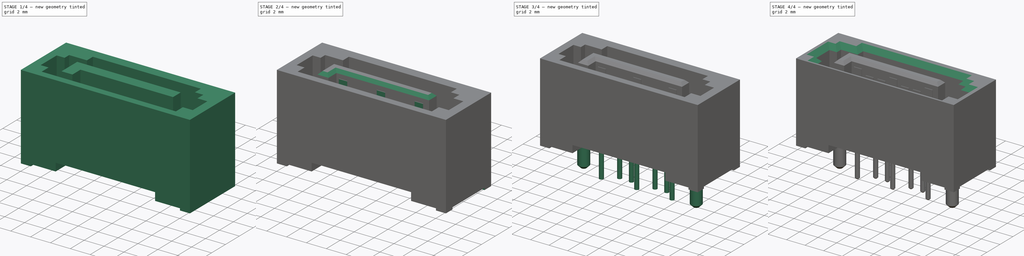
[diagram: build sequence overview — one tinted view per stage of 4, left to right]
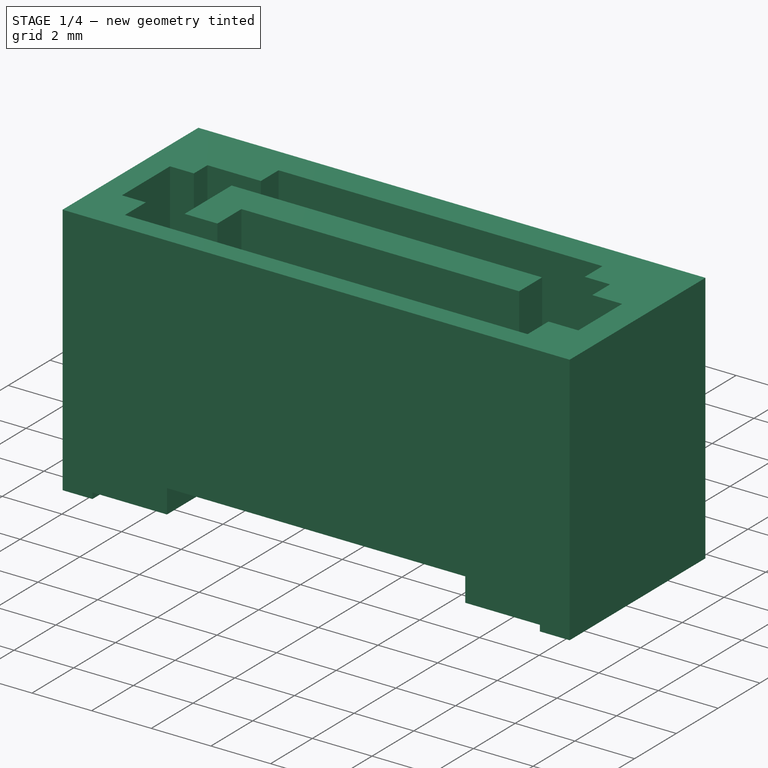
[diagram: stage 1 of 4 — iso view after this stage's code; geometry added in this stage tinted green]
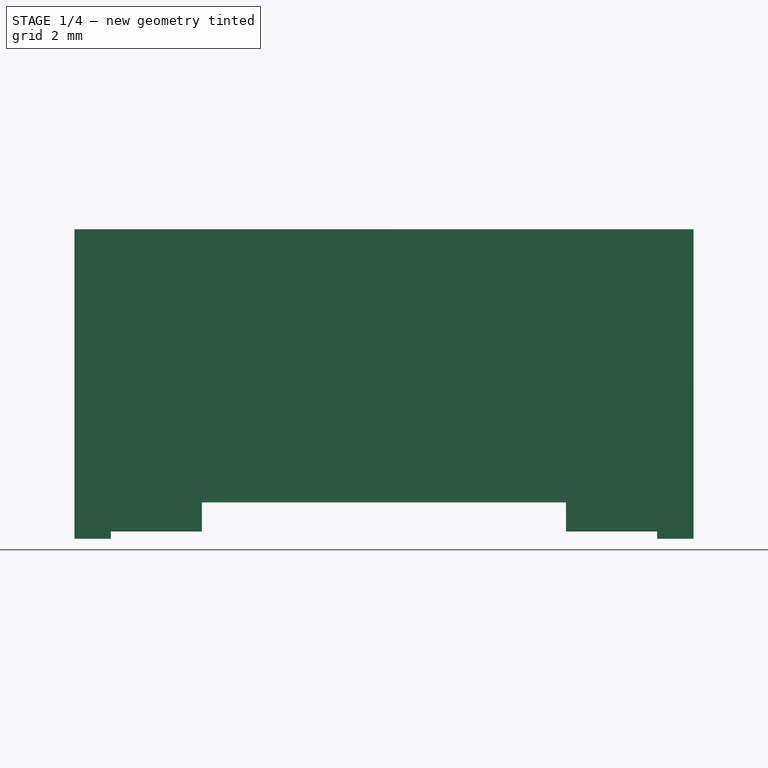
[diagram: stage 1 of 4 — front view after this stage's code; geometry added in this stage tinted green]
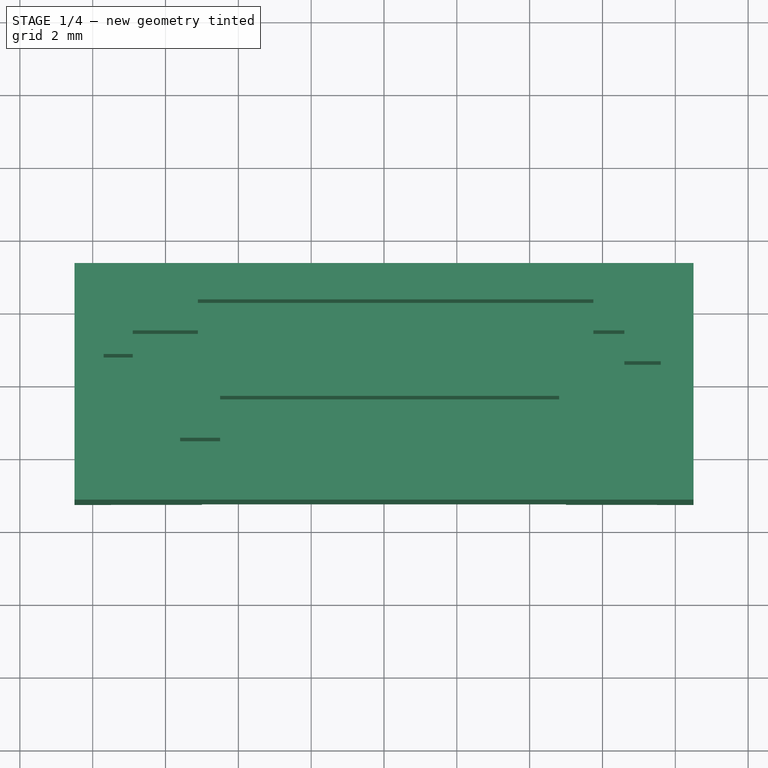
[diagram: stage 1 of 4 — top view after this stage's code; geometry added in this stage tinted green]
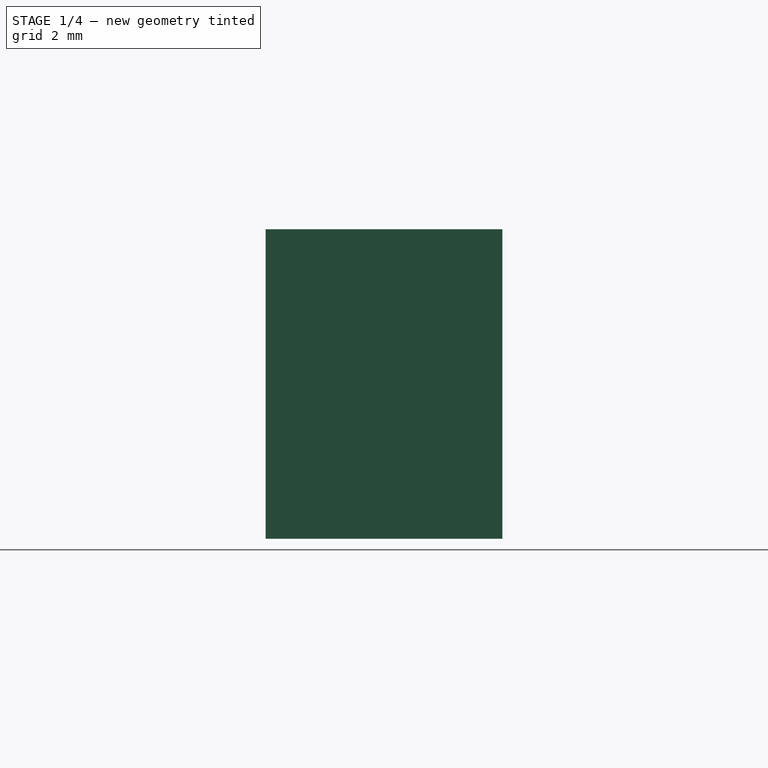
[diagram: stage 1 of 4 — right view after this stage's code; geometry added in this stage tinted green]
FCSTD DOCUMENT  (FreeCAD 0.14R3702 (Git))
Label: sata-data
License: CC-BY 3.0
LicenseURL: http://creativecommons.org/licenses/by/3.0/
objects: Sketcher::SketchObject×8, PartDesign::Pad×5, PartDesign::Chamfer×4, PartDesign::Pocket×3, Part::MultiFuse×2, App::DocumentObjectGroup×1
note: 30 computed .brp shape members not serialized (recipe doc carries the construction recipe); baked Part::Feature solids carry a one-line shape summary decoded from their .brp

FEATURE [Sketcher::SketchObject] Sketch
  sketch-geometry (7):
    g0: LineSegment StartX=-8.5 StartY=3.25 StartZ=0 EndX=8.5 EndY=3.25 EndZ=0
    g1: LineSegment StartX=8.5 StartY=3.25 StartZ=0 EndX=8.5 EndY=-3.25 EndZ=0
    g2: LineSegment StartX=8.5 StartY=-3.25 StartZ=0 EndX=-8.5 EndY=-3.25 EndZ=0
    g3: LineSegment StartX=-8.5 StartY=-3.25 StartZ=0 EndX=-8.5 EndY=3.25 EndZ=0
    g4: LineSegment [constr] StartX=-8.5 StartY=3.25 StartZ=0 EndX=8.5 EndY=-3.25 EndZ=0
    g5: LineSegment [constr] StartX=-8.5 StartY=-3.25 StartZ=0 EndX=8.5 EndY=3.25 EndZ=0
    g6: GeomPoint [constr] X=0 Y=0 Z=0
  constraints (17):
    c: Coincident(g0,g1)
    c: Coincident(g1,g2)
    c: Coincident(g2,g3)
    c: Coincident(g3,g0)
    c: Horizontal(g0)
    c: Horizontal(g2)
    c: Vertical(g1)
    c: Vertical(g3)
    c: DistanceX(g0,g0) = 17
    c: DistanceY(g0,g1) = -6.5
    c: Coincident(g4,g0)
    c: Coincident(g4,g1)
    c: Coincident(g5,g2)
    c: Coincident(g5,g0)
    c: PointOnObject(g6,g4)
    c: PointOnObject(g6,g5)
    c: Coincident(g6,g-1)
FEATURE [PartDesign::Pad] Pad  label="Body"
  Length = 8.5
  Length2 = 100
  Sketch = -> Sketch
  Type = 0
FEATURE [Sketcher::SketchObject] Sketch001
  Placement = pos=(0,-3.25,0) rot=(1,0,0;1.5708rad)
  Support = -> Pad [Face3]
  sketch-geometry (8):
    g0: LineSegment StartX=-7.5 StartY=0 StartZ=0 EndX=-7.5 EndY=0.2 EndZ=0
    g1: LineSegment StartX=-7.5 StartY=0.2 StartZ=0 EndX=-5 EndY=0.2 EndZ=0
    g2: LineSegment StartX=-5 StartY=0.2 StartZ=0 EndX=-5 EndY=1 EndZ=0
    g3: LineSegment StartX=-5 StartY=1 StartZ=0 EndX=5 EndY=1 EndZ=0
    g4: LineSegment StartX=5 StartY=1 StartZ=0 EndX=5 EndY=0.2 EndZ=0
    g5: LineSegment StartX=5 StartY=0.2 StartZ=0 EndX=7.5 EndY=0.2 EndZ=0
    g6: LineSegment StartX=7.5 StartY=0.2 StartZ=0 EndX=7.5 EndY=0 EndZ=0
    g7: LineSegment StartX=7.5 StartY=0 StartZ=0 EndX=-7.5 EndY=0 EndZ=0
  constraints (22):
    c: Vertical(g0)
    c: Coincident(g0,g1)
    c: Coincident(g1,g2)
    c: Coincident(g2,g3)
    c: Coincident(g3,g4)
    c: Vertical(g4)
    c: Coincident(g4,g5)
    c: Coincident(g5,g6)
    c: Coincident(g6,g7)
    c: Coincident(g7,g0)
    c: Equal(g6,g0)
    c: Equal(g1,g5)
    c: Equal(g2,g4)
    c: Tangent(g1,g5)
    c: DistanceY(g3,g6) = -1
    c: DistanceY(g6,g5) = 0.2
    c: DistanceX(g0,g6) = 15
    c: Vertical(g6)
    c: DistanceX(g2,g3) = 10
    c: Symmetric(g2,g3,g-2)
    c: Symmetric(g0,g6,g-2)
    c: Tangent(g7,g-1)
FEATURE [PartDesign::Pocket] Pocket  label="foot"
  Length = 5
  Sketch = -> Sketch001
  Type = 1
FEATURE [Sketcher::SketchObject] Sketch002
  ExternalGeometry = -> [Pocket]
  Placement = pos=(0,0,8.5) rot=(0,0,1;0rad)
  Support = -> Pocket [Face12]
  sketch-geometry (16):
    g0: LineSegment StartX=-5.11 StartY=2.25 StartZ=0 EndX=5.75 EndY=2.25 EndZ=0
    g1: LineSegment StartX=5.75 StartY=2.25 StartZ=0 EndX=5.75 EndY=1.4 EndZ=0
    g2: LineSegment StartX=5.75 StartY=1.4 StartZ=0 EndX=6.6 EndY=1.4 EndZ=0
    g3: LineSegment StartX=6.6 StartY=1.4 StartZ=0 EndX=6.6 EndY=0.55 EndZ=0
    g4: LineSegment StartX=6.6 StartY=0.55 StartZ=0 EndX=7.6 EndY=0.55 EndZ=0
    g5: LineSegment StartX=7.6 StartY=0.55 StartZ=0 EndX=7.6 EndY=-1.55 EndZ=0
    g6: LineSegment StartX=7.6 StartY=-1.55 StartZ=0 EndX=6.6 EndY=-1.55 EndZ=0
    g7: LineSegment StartX=6.6 StartY=-1.55 StartZ=0 EndX=6.6 EndY=-2.55 EndZ=0
    g8: LineSegment StartX=6.6 StartY=-2.55 StartZ=0 EndX=-6.9 EndY=-2.55 EndZ=0
    g9: LineSegment StartX=-6.9 StartY=-2.55 StartZ=0 EndX=-6.9 EndY=-1.55 EndZ=0
    g10: LineSegment StartX=-6.9 StartY=-1.55 StartZ=0 EndX=-7.7 EndY=-1.55 EndZ=0
    g11: LineSegment StartX=-7.7 StartY=-1.55 StartZ=0 EndX=-7.7 EndY=0.75 EndZ=0
    g12: LineSegment StartX=-7.7 StartY=0.75 StartZ=0 EndX=-6.9 EndY=0.75 EndZ=0
    g13: LineSegment StartX=-6.9 StartY=0.75 StartZ=0 EndX=-6.9 EndY=1.4 EndZ=0
    g14: LineSegment StartX=-6.9 StartY=1.4 StartZ=0 EndX=-5.11 EndY=1.4 EndZ=0
    g15: LineSegment StartX=-5.11 StartY=1.4 StartZ=0 EndX=-5.11 EndY=2.25 EndZ=0
  constraints (48):
    c: Horizontal(g0)
    c: DistanceX(g0,g0) = 10.86
    c: Coincident(g0,g1)
    c: Vertical(g1)
    c: Coincident(g1,g2)
    c: Coincident(g2,g3)
    c: Coincident(g3,g4)
    c: Coincident(g4,g5)
    c: Vertical(g5)
    c: Horizontal(g2)
    c: DistanceX(g1,g2) = 0.85
    c: Vertical(g3)
    c: Horizontal(g4)
    c: DistanceX(g3,g4) = 1
    c: Coincident(g5,g6)
    c: Coincident(g6,g7)
    c: Vertical(g7)
    c: DistanceY(g7,g-3) = -0.7
    c: DistanceY(g0,g-4) = 1
    c: DistanceX(g4,g-4) = 0.9
    c: DistanceY(g6,g-3) = -1.7
    c: Horizontal(g6)
    c: Tangent(g7,g3)
    c: Coincident(g8,g7)
    c: Horizontal(g8)
    c: DistanceX(g8,g7) = 13.5
    c: Equal(g3,g1)
    c: DistanceY(g5,g4) = 2.1
    c: Coincident(g8,g9)
    c: Coincident(g9,g10)
    c: Coincident(g10,g11)
    c: Vertical(g11)
    c: Coincident(g11,g12)
    c: Coincident(g12,g13)
    c: Coincident(g13,g14)
    c: Horizontal(g14)
    c: Coincident(g14,g15)
    c: Coincident(g15,g0)
    c: Vertical(g15)
    c: Vertical(g9)
    c: Horizontal(g10)
    c: Horizontal(g12)
    c: DistanceX(g11,g4) = 15.3
    c: DistanceY(g8,g9) = 1
    c: Equal(g1,g15)
    c: DistanceX(g12,g2) = 13.5
    c: Vertical(g13)
    c: DistanceY(g11,g10) = -2.3
FEATURE [PartDesign::Pocket] Pocket001  label="inside"
  Length = 5.5
  Sketch = -> Sketch002
  Type = 0
FEATURE [Sketcher::SketchObject] Sketch003
  ExternalGeometry = -> [Pocket001]
  Placement = pos=(0,0,8.5) rot=(0,0,1;0rad)
  Support = -> Pocket001 [Face12]
  sketch-geometry (6):
    g0: LineSegment StartX=-5.6 StartY=0.7 StartZ=0 EndX=4.81 EndY=0.7 EndZ=0
    g1: LineSegment StartX=4.81 StartY=0.7 StartZ=0 EndX=4.81 EndY=-0.4 EndZ=0
    g2: LineSegment StartX=4.81 StartY=-0.4 StartZ=0 EndX=-4.5 EndY=-0.4 EndZ=0
    g3: LineSegment StartX=-4.5 StartY=-0.4 StartZ=0 EndX=-4.5 EndY=-1.55 EndZ=0
    g4: LineSegment StartX=-4.5 StartY=-1.55 StartZ=0 EndX=-5.6 EndY=-1.55 EndZ=0
    g5: LineSegment StartX=-5.6 StartY=-1.55 StartZ=0 EndX=-5.6 EndY=0.7 EndZ=0
  constraints (18):
    c: Horizontal(g0)
    c: Coincident(g0,g1)
    c: Vertical(g1)
    c: Coincident(g1,g2)
    c: Horizontal(g2)
    c: Coincident(g2,g3)
    c: Coincident(g3,g4)
    c: Horizontal(g4)
    c: Coincident(g4,g5)
    c: Coincident(g5,g0)
    c: Vertical(g5)
    c: Vertical(g3)
    c: DistanceX(g0,g0) = 10.41
    c: DistanceY(g0,g-3) = 1.55
    c: DistanceY(g1,g0) = 1.1
    c: DistanceX(g1,g-4) = 1.79
    c: DistanceY(g4,g0) = 2.25
    c: Equal(g4,g1)
FEATURE [PartDesign::Pad] Pad001  label="connector"
  Length = 8.5
  Length2 = 100
  Reversed = true
  Sketch = -> Sketch003
  Type = 2
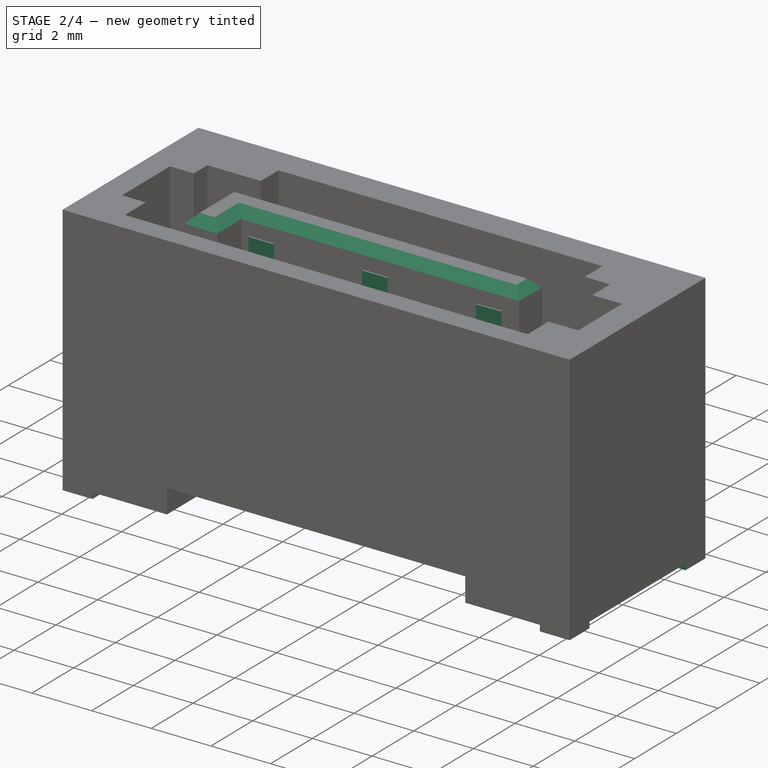
[diagram: stage 2 of 4 — iso view after this stage's code; geometry added in this stage tinted green]
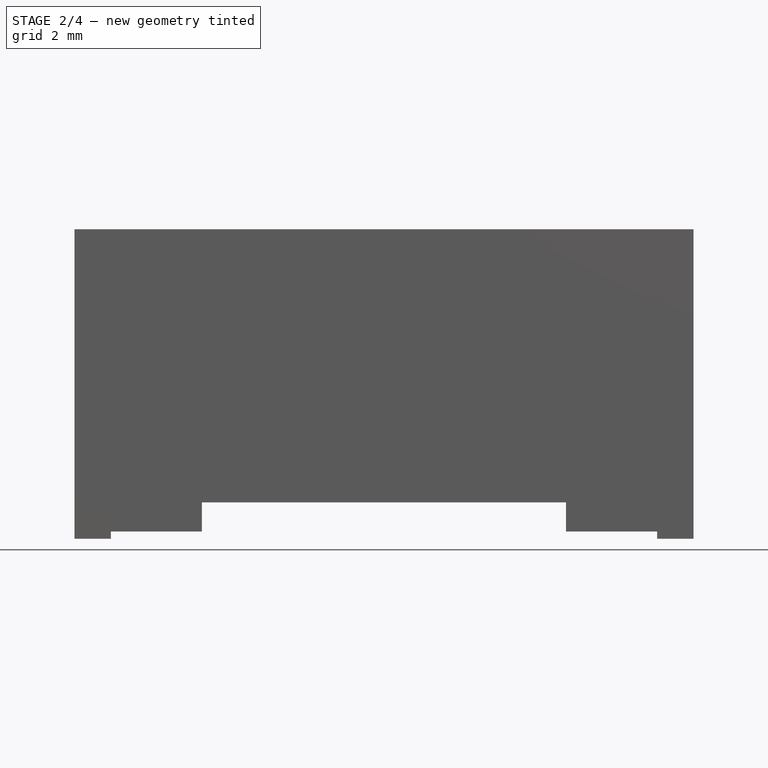
[diagram: stage 2 of 4 — front view after this stage's code; geometry added in this stage tinted green]
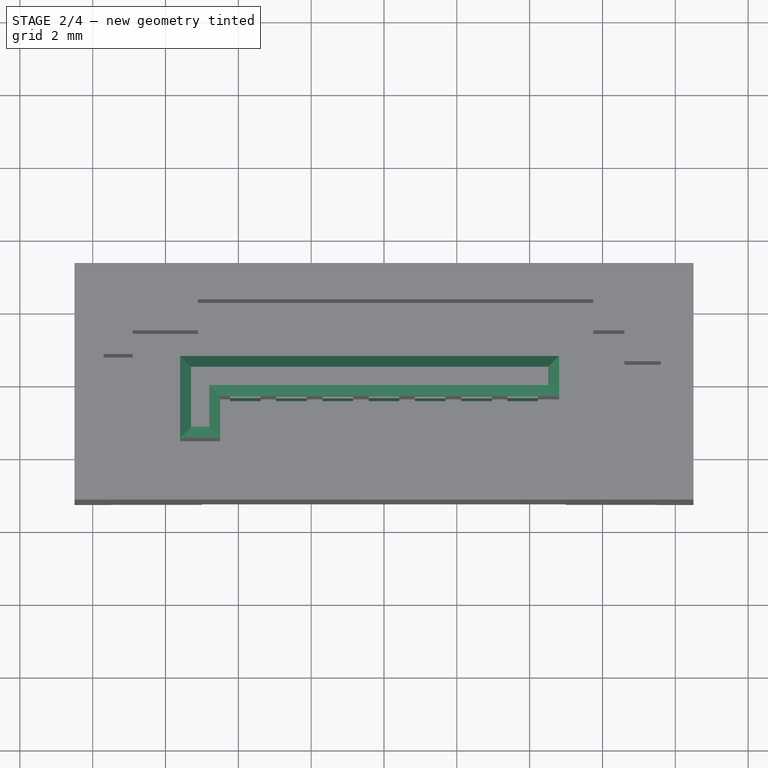
[diagram: stage 2 of 4 — top view after this stage's code; geometry added in this stage tinted green]
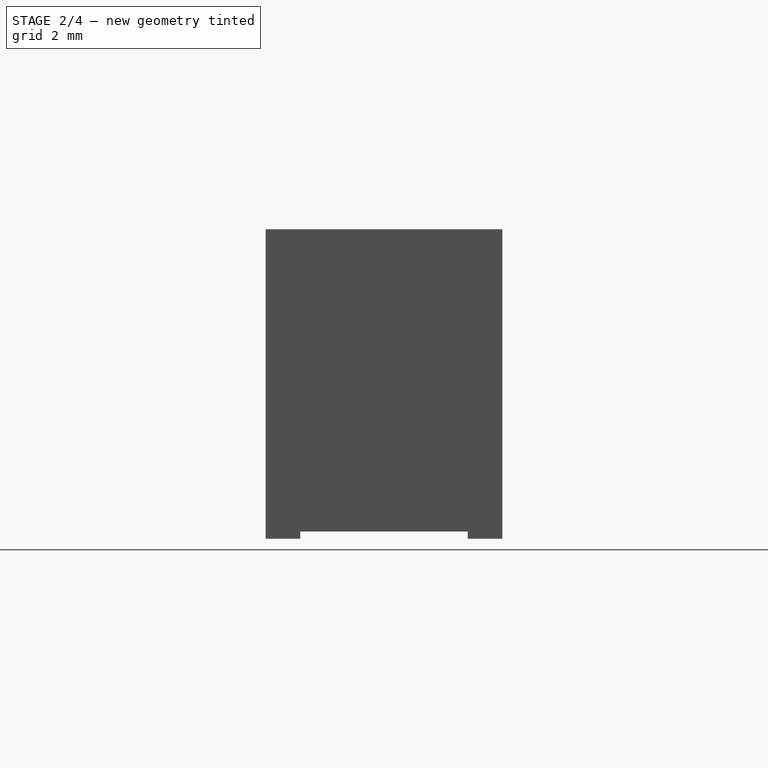
[diagram: stage 2 of 4 — right view after this stage's code; geometry added in this stage tinted green]
FEATURE [Sketcher::SketchObject] Sketch004
  sketch-geometry (2):
    g0: Circle CenterX=6.415 CenterY=-0.5 CenterZ=0 NormalX=0 NormalY=0 NormalZ=1 Radius=0.575
    g1: Circle CenterX=-6.415 CenterY=0.5 CenterZ=0 NormalX=0 NormalY=0 NormalZ=1 Radius=0.575
  constraints (6):
    c: Equal(g1,g0)
    c: Radius(g0) = 0.575
    c: DistanceX(g1,g0) = 12.83
    c: DistanceY(g1,g0) = -1
    c: DistanceX(g-1,g0) = 6.415
    c: DistanceY(g-1,g0) = -0.5
FEATURE [Sketcher::SketchObject] Sketch005
  ExternalGeometry = -> [Pad001]
  Placement = pos=(-8.5,0,0) rot=(0.57735,-0.57735,-0.57735;2.0944rad)
  Support = -> Pad001 [Face13]
  sketch-geometry (4):
    g0: LineSegment StartX=-2.3 StartY=0 StartZ=0 EndX=2.3 EndY=0 EndZ=0
    g1: LineSegment StartX=2.3 StartY=0 StartZ=0 EndX=2.3 EndY=0.2 EndZ=0
    g2: LineSegment StartX=2.3 StartY=0.2 StartZ=0 EndX=-2.3 EndY=0.2 EndZ=0
    g3: LineSegment StartX=-2.3 StartY=0.2 StartZ=0 EndX=-2.3 EndY=0 EndZ=0
  constraints (12):
    c: Coincident(g0,g1)
    c: Coincident(g1,g2)
    c: Coincident(g2,g3)
    c: Coincident(g3,g0)
    c: Horizontal(g0)
    c: Horizontal(g2)
    c: Vertical(g1)
    c: Vertical(g3)
    c: DistanceX(g2,g-3) = -0.95
    c: DistanceX(g1,g-4) = 0.95
    c: Tangent(g0,g-1)
    c: DistanceY(g2,g0) = -0.2
FEATURE [PartDesign::Pocket] Pocket002  label="pads"
  Length = 5
  Sketch = -> Sketch005
  Type = 1
FEATURE [Sketcher::SketchObject] Sketch007
  Placement = pos=(0,-0.4,0) rot=(1,0,0;1.5708rad)
  Support = -> Pocket002 [Face51]
  sketch-geometry (28):
    g0: LineSegment StartX=-4.23 StartY=3 StartZ=0 EndX=-3.39 EndY=3 EndZ=0
    g1: LineSegment StartX=-3.39 StartY=3 StartZ=0 EndX=-3.39 EndY=7.75 EndZ=0
    g2: LineSegment StartX=-3.39 StartY=7.75 StartZ=0 EndX=-4.23 EndY=7.75 EndZ=0
    g3: LineSegment StartX=-4.23 StartY=7.75 StartZ=0 EndX=-4.23 EndY=3 EndZ=0
    g4: LineSegment StartX=-0.42 StartY=3 StartZ=0 EndX=0.42 EndY=3 EndZ=0
    g5: LineSegment StartX=0.42 StartY=3 StartZ=0 EndX=0.42 EndY=7.75 EndZ=0
    g6: LineSegment StartX=0.42 StartY=7.75 StartZ=0 EndX=-0.42 EndY=7.75 EndZ=0
    g7: LineSegment StartX=-0.42 StartY=7.75 StartZ=0 EndX=-0.42 EndY=3 EndZ=0
    g8: LineSegment StartX=3.39 StartY=3 StartZ=0 EndX=4.23 EndY=3 EndZ=0
    g9: LineSegment StartX=4.23 StartY=3 StartZ=0 EndX=4.23 EndY=7.75 EndZ=0
    g10: LineSegment StartX=4.23 StartY=7.75 StartZ=0 EndX=3.39 EndY=7.75 EndZ=0
    g11: LineSegment StartX=3.39 StartY=7.75 StartZ=0 EndX=3.39 EndY=3 EndZ=0
    g12: LineSegment StartX=-2.96 StartY=3 StartZ=0 EndX=-2.12 EndY=3 EndZ=0
    g13: LineSegment StartX=-2.12 StartY=3 StartZ=0 EndX=-2.12 EndY=7.25 EndZ=0
    g14: LineSegment StartX=-2.12 StartY=7.25 StartZ=0 EndX=-2.96 EndY=7.25 EndZ=0
    g15: LineSegment StartX=-2.96 StartY=7.25 StartZ=0 EndX=-2.96 EndY=3 EndZ=0
    g16: LineSegment StartX=-1.69 StartY=3 StartZ=0 EndX=-0.85 EndY=3 EndZ=0
    g17: LineSegment StartX=-0.85 StartY=3 StartZ=0 EndX=-0.85 EndY=7.25 EndZ=0
    g18: LineSegment StartX=-0.85 StartY=7.25 StartZ=0 EndX=-1.69 EndY=7.25 EndZ=0
    g19: LineSegment StartX=-1.69 StartY=7.25 StartZ=0 EndX=-1.69 EndY=3 EndZ=0
    g20: LineSegment StartX=0.85 StartY=3 StartZ=0 EndX=1.69 EndY=3 EndZ=0
    g21: LineSegment StartX=1.69 StartY=3 StartZ=0 EndX=1.69 EndY=7.25 EndZ=0
    g22: LineSegment StartX=1.69 StartY=7.25 StartZ=0 EndX=0.85 EndY=7.25 EndZ=0
    g23: LineSegment StartX=0.85 StartY=7.25 StartZ=0 EndX=0.85 EndY=3 EndZ=0
    g24: LineSegment StartX=2.12 StartY=3 StartZ=0 EndX=2.96 EndY=3 EndZ=0
    g25: LineSegment StartX=2.96 StartY=3 StartZ=0 EndX=2.96 EndY=7.25 EndZ=0
    g26: LineSegment StartX=2.96 StartY=7.25 StartZ=0 EndX=2.12 EndY=7.25 EndZ=0
    g27: LineSegment StartX=2.12 StartY=7.25 StartZ=0 EndX=2.12 EndY=3 EndZ=0
  constraints (83):
    c: Coincident(g0,g1)
    c: Coincident(g1,g2)
    c: Coincident(g2,g3)
    c: Coincident(g3,g0)
    c: Horizontal(g0)
    c: Horizontal(g2)
    c: Vertical(g1)
    c: Vertical(g3)
    c: Coincident(g4,g5)
    c: Coincident(g5,g6)
    c: Coincident(g6,g7)
    c: Coincident(g7,g4)
    c: Horizontal(g4)
    c: Horizontal(g6)
    c: Vertical(g5)
    c: Vertical(g7)
    c: Coincident(g8,g9)
    c: Coincident(g9,g10)
    c: Coincident(g10,g11)
    c: Coincident(g11,g8)
    c: Horizontal(g10)
    c: Vertical(g9)
    c: Vertical(g11)
    c: Coincident(g12,g13)
    c: Coincident(g13,g14)
    c: Coincident(g14,g15)
    c: Coincident(g15,g12)
    c: Horizontal(g12)
    c: Horizontal(g14)
    c: Vertical(g13)
    c: Vertical(g15)
    c: Coincident(g16,g17)
    c: Coincident(g17,g18)
    c: Coincident(g18,g19)
    c: Coincident(g19,g16)
    c: Horizontal(g16)
    c: Horizontal(g18)
    c: Vertical(g17)
    c: Vertical(g19)
    c: Coincident(g20,g21)
    c: Coincident(g21,g22)
    c: Coincident(g22,g23)
    c: Coincident(g23,g20)
    c: Horizontal(g20)
    c: Horizontal(g22)
    c: Vertical(g21)
    c: Vertical(g23)
    c: Coincident(g24,g25)
    c: Coincident(g25,g26)
    c: Coincident(g26,g27)
    c: Coincident(g27,g24)
    c: Horizontal(g24)
    c: Horizontal(g26)
    c: Vertical(g25)
    c: Vertical(g27)
    c: Equal(g2,g14)
    c: Equal(g14,g18)
    c: Equal(g18,g6)
    c: Equal(g6,g22)
    c: Equal(g22,g26)
    c: Equal(g26,g10)
    c: DistanceX(g2,g1) = 0.84
    c: Equal(g1,g5)
    c: Equal(g5,g9)
    c: Equal(g13,g17)
    c: Equal(g17,g21)
    c: Equal(g21,g25)
    c: DistanceX(g13,g1) = -1.27
    c: DistanceX(g13,g17) = 1.27
    c: DistanceX(g17,g5) = 1.27
    c: DistanceX(g4,g20) = 1.27
    c: DistanceX(g20,g24) = 1.27
    c: DistanceX(g24,g8) = 1.27
    c: DistanceY(g0,g2) = 4.75
    c: DistanceY(g12,g14) = 4.25
    c: Tangent(g24,g8)
    c: Tangent(g20,g8)
    c: Tangent(g4,g8)
    c: Tangent(g16,g8)
    c: Tangent(g12,g8)
    c: Tangent(g0,g8)
    c: DistanceY(g-1,g0) = 3
    c: DistanceX(g-1,g5) = 0.42
FEATURE [PartDesign::Pad] Pad004  label="contacts"
  Length = 0.05
  Length2 = 100
  Sketch = -> Sketch007
  Type = 0
FEATURE [PartDesign::Chamfer] Chamfer
  Base = -> Pad004 [Edge153,Edge156,Edge158,Edge160,Edge162,Edge220]
  Size = 0.3
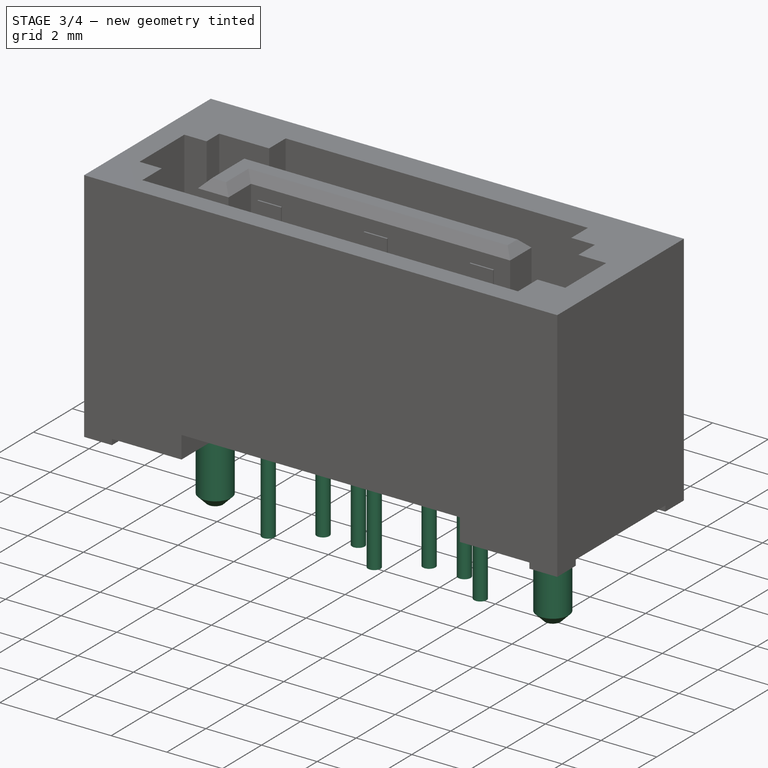
[diagram: stage 3 of 4 — iso view after this stage's code; geometry added in this stage tinted green]
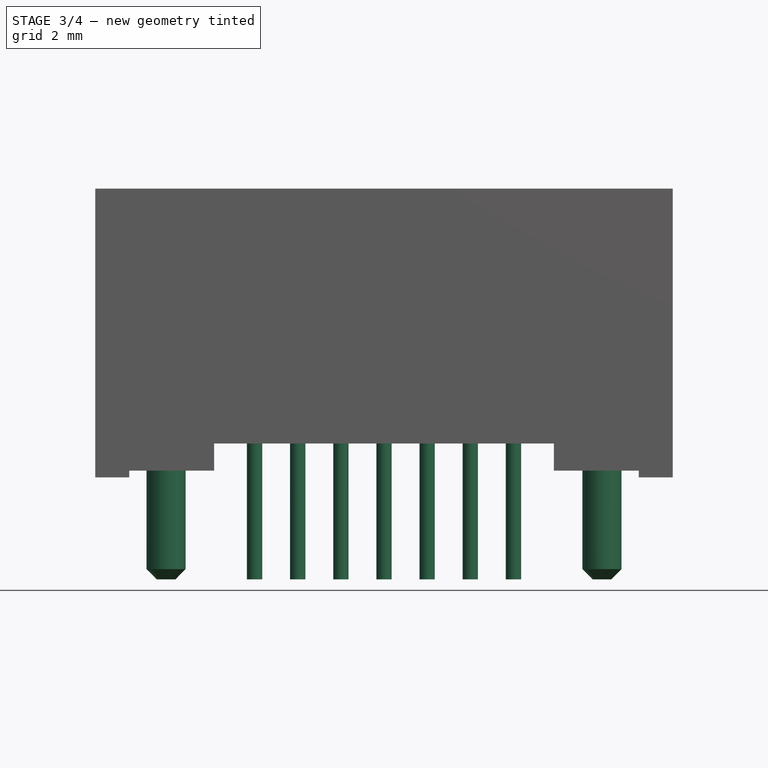
[diagram: stage 3 of 4 — front view after this stage's code; geometry added in this stage tinted green]
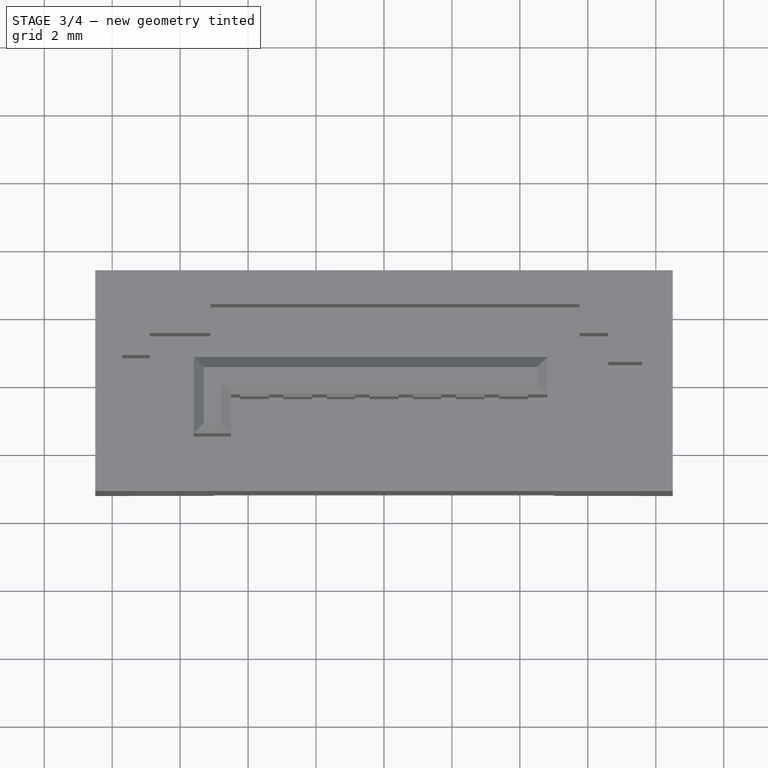
[diagram: stage 3 of 4 — top view after this stage's code; geometry added in this stage tinted green]
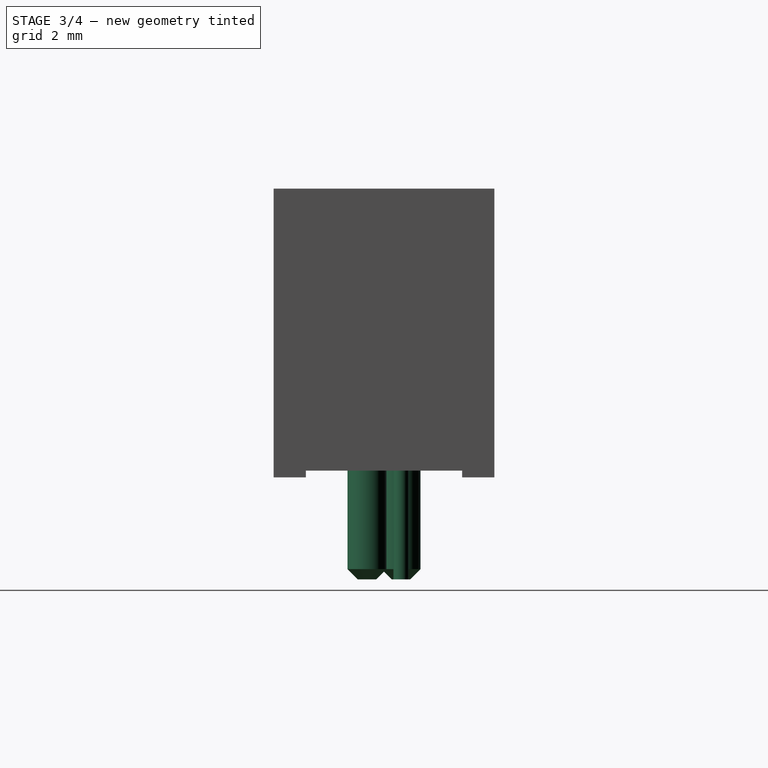
[diagram: stage 3 of 4 — right view after this stage's code; geometry added in this stage tinted green]
FEATURE [PartDesign::Pad] Pad002  label="pin-x2"
  Length = 0.5
  Length2 = 3
  Reversed = true
  Sketch = -> Sketch004
  Type = 4
FEATURE [Sketcher::SketchObject] Sketch006
  Placement = pos=(0,0,0) rot=(1,0,0;3.14159rad)
  sketch-geometry (9):
    g0: Circle CenterX=-2.54 CenterY=-0.5 CenterZ=0 NormalX=0 NormalY=0 NormalZ=1 Radius=0.225
    g1: Circle CenterX=-1.27 CenterY=-0.5 CenterZ=0 NormalX=0 NormalY=0 NormalZ=1 Radius=0.225
    g2: Circle CenterX=0 CenterY=0.5 CenterZ=0 NormalX=0 NormalY=0 NormalZ=1 Radius=0.225
    g3: Circle CenterX=1.27 CenterY=-0.5 CenterZ=0 NormalX=0 NormalY=0 NormalZ=1 Radius=0.225
    g4: Circle CenterX=2.54 CenterY=-0.5 CenterZ=0 NormalX=0 NormalY=0 NormalZ=1 Radius=0.225
    g5: Circle CenterX=3.81 CenterY=0.5 CenterZ=0 NormalX=0 NormalY=0 NormalZ=1 Radius=0.225
    g6: Circle CenterX=-3.81 CenterY=0.5 CenterZ=0 NormalX=0 NormalY=0 NormalZ=1 Radius=0.225
    g7: LineSegment [constr] StartX=-3.81 StartY=0.5 StartZ=0 EndX=3.81 EndY=0.5 EndZ=0
    g8: LineSegment [constr] StartX=-2.54 StartY=-0.5 StartZ=0 EndX=2.54 EndY=-0.5 EndZ=0
  constraints (25):
    c: Equal(g6,g0)
    c: Equal(g6,g1)
    c: Equal(g6,g2)
    c: Equal(g3,g6)
    c: Equal(g6,g4)
    c: Equal(g6,g5)
    c: Radius(g6) = 0.225
    c: DistanceX(g6,g0) = 1.27
    c: DistanceX(g0,g1) = 1.27
    c: DistanceX(g1,g2) = 1.27
    c: DistanceX(g2,g3) = 1.27
    c: DistanceX(g3,g4) = 1.27
    c: DistanceX(g4,g5) = 1.27
    c: Horizontal(g7)
    c: PointOnObject(g2,g7)
    c: Coincident(g6,g7)
    c: Coincident(g5,g7)
    c: Coincident(g0,g8)
    c: Horizontal(g8)
    c: Coincident(g4,g8)
    c: PointOnObject(g1,g8)
    c: PointOnObject(g3,g8)
    c: DistanceY(g5,g4) = -1
    c: PointOnObject(g2,g-2)
    c: DistanceY(g-1,g2) = 0.5
FEATURE [PartDesign::Pad] Pad003  label="pin-x7-0.45"
  Length = 3
  Length2 = 1.2
  Placement = pos=(0,0,0) rot=(1,0,0;3.14159rad)
  Sketch = -> Sketch006
  Type = 4
FEATURE [PartDesign::Chamfer] Chamfer002
  Base = -> Pad002 [Edge2,Edge5]
  Size = 0.3
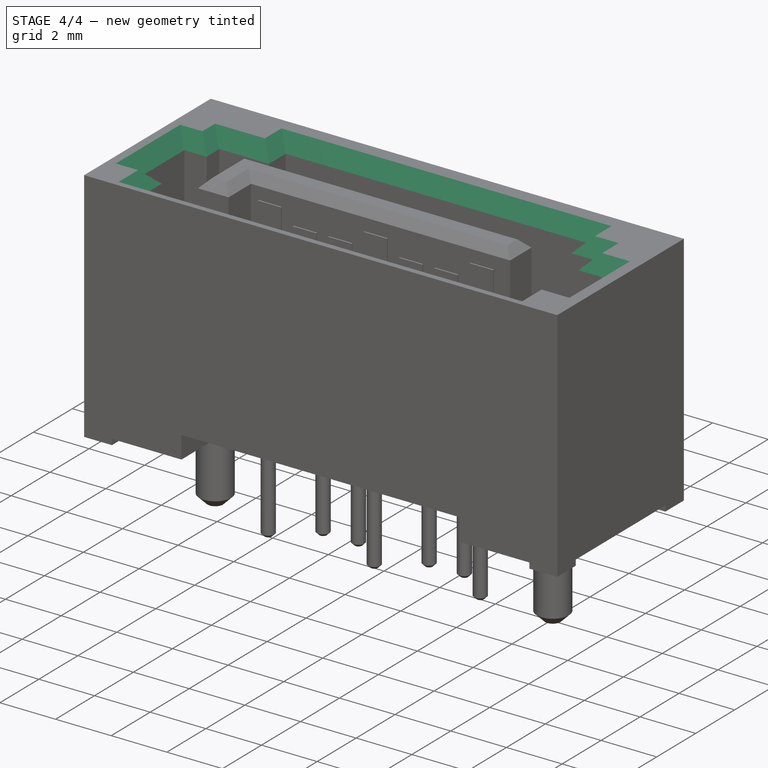
[diagram: stage 4 of 4 — iso view after this stage's code; geometry added in this stage tinted green]
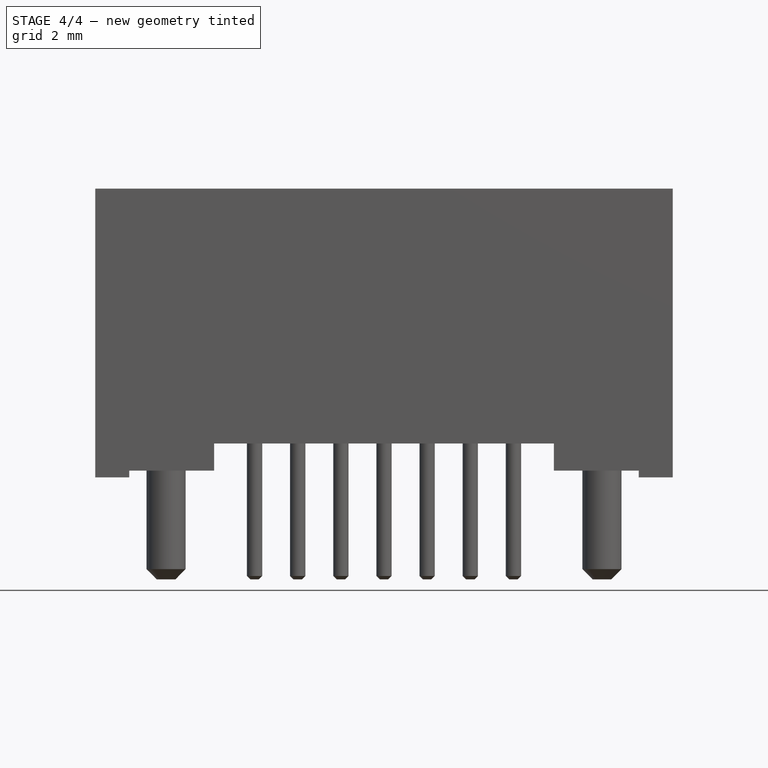
[diagram: stage 4 of 4 — front view after this stage's code; geometry added in this stage tinted green]
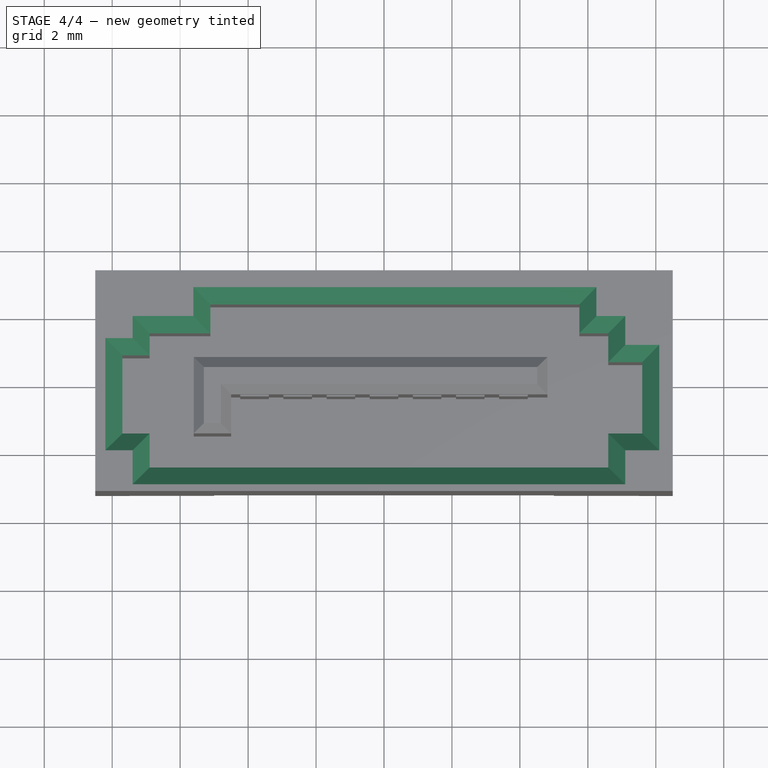
[diagram: stage 4 of 4 — top view after this stage's code; geometry added in this stage tinted green]
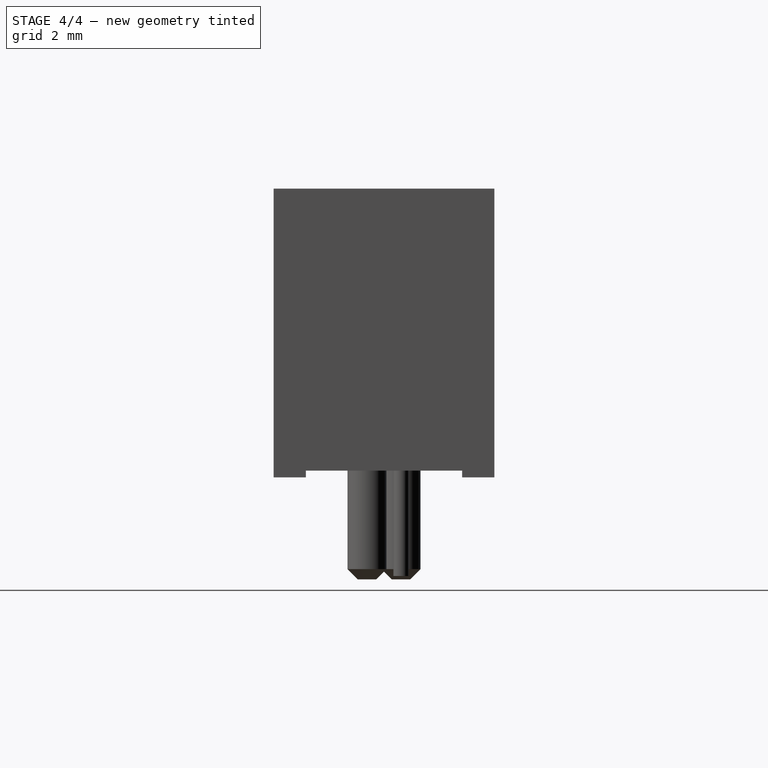
[diagram: stage 4 of 4 — right view after this stage's code; geometry added in this stage tinted green]
FEATURE [PartDesign::Chamfer] Chamfer001
  Base = -> Chamfer [Edge71,Edge74,Edge78,Edge82,Edge86,Edge90,Edge94,Edge98,Edge101,Edge99,Edge95,Edge91,Edge87,Edge83,Edge79,Edge75]
  Size = 0.5
FEATURE [PartDesign::Chamfer] Chamfer003
  Base = -> Pad003 [Edge9,Edge12,Edge15,Edge3,Edge18,Edge21,Edge6]
  Placement = pos=(0,0,0) rot=(1,0,0;3.14159rad)
  Size = 0.1
FEATURE [Part::MultiFuse] Fusion
  Shapes = -> [Chamfer001,Chamfer002]
FEATURE [Part::MultiFuse] Fusion001
  Shapes = -> [Chamfer003,Fusion]
FEATURE [App::DocumentObjectGroup] Groupe  label="src"
  Group = -> [Pad,Pocket,Pocket001,Pad001,Pocket002,Pad002,Pad003,Pad004,Chamfer]
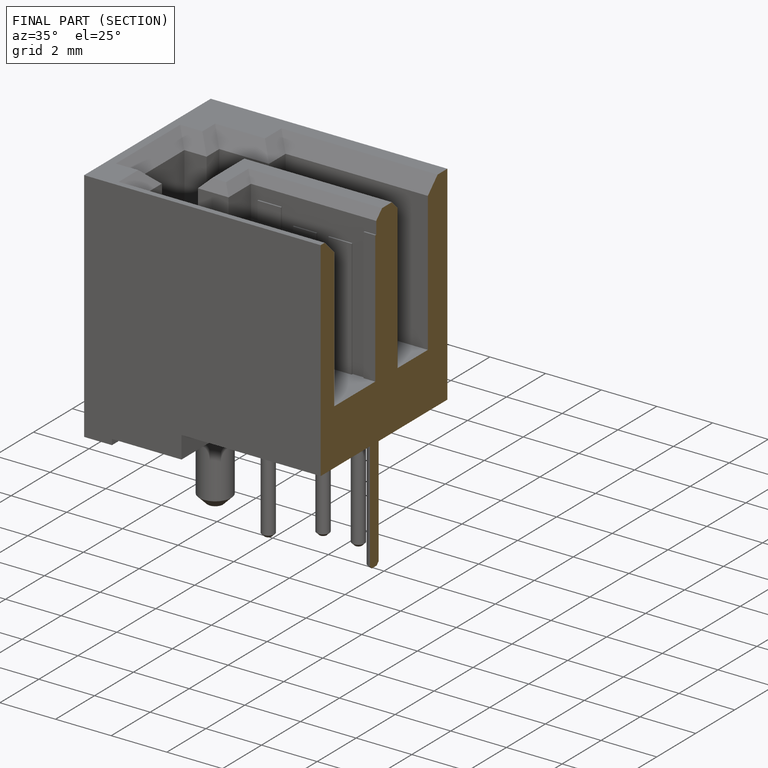
[diagram: finished part — half-section view (interior)]
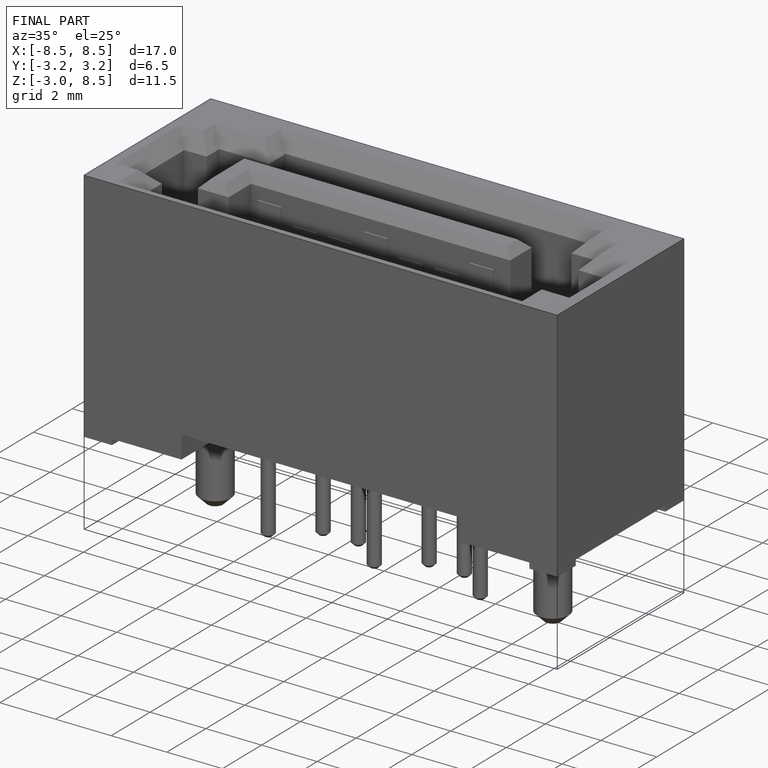
[diagram: finished part — iso view with bounding-box wireframe]
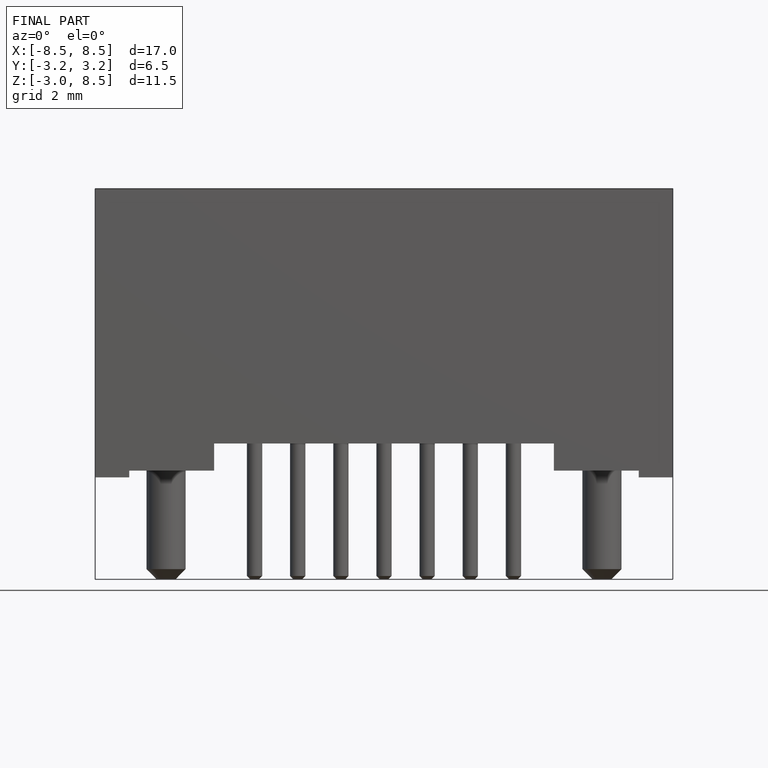
[diagram: finished part — front view with bounding-box wireframe]
